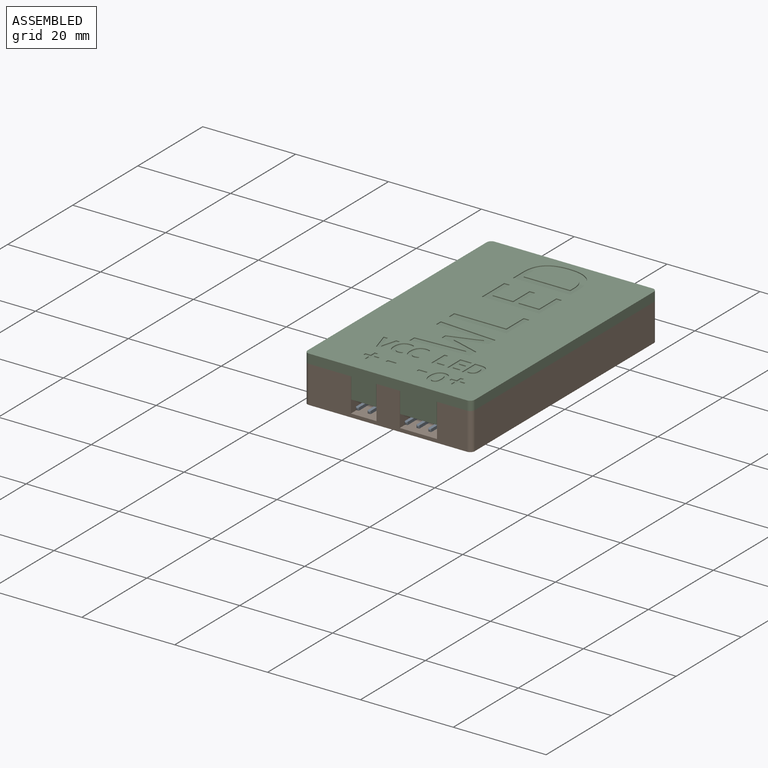
[diagram: assembled view]
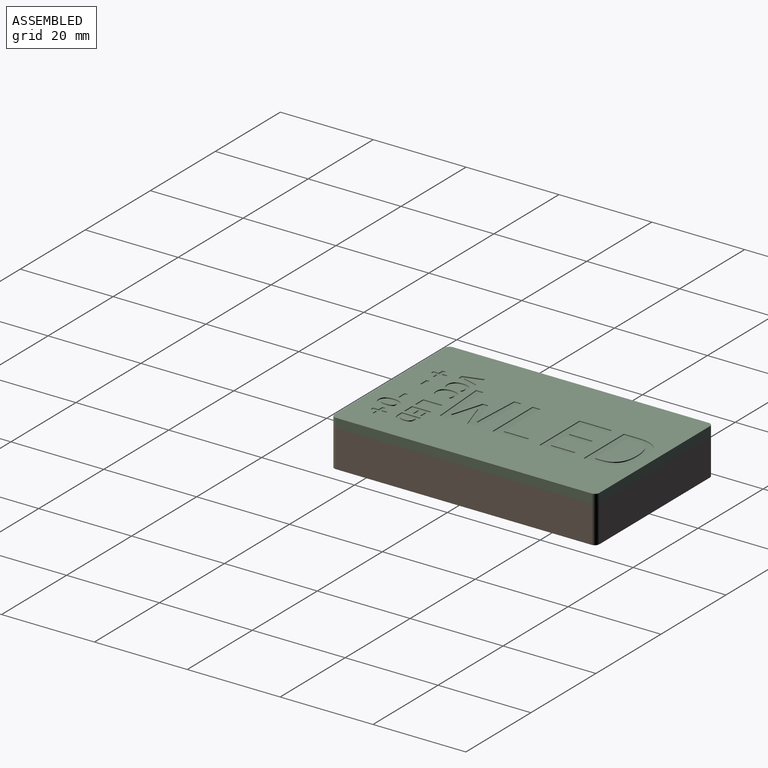
[diagram: assembled view, second angle]
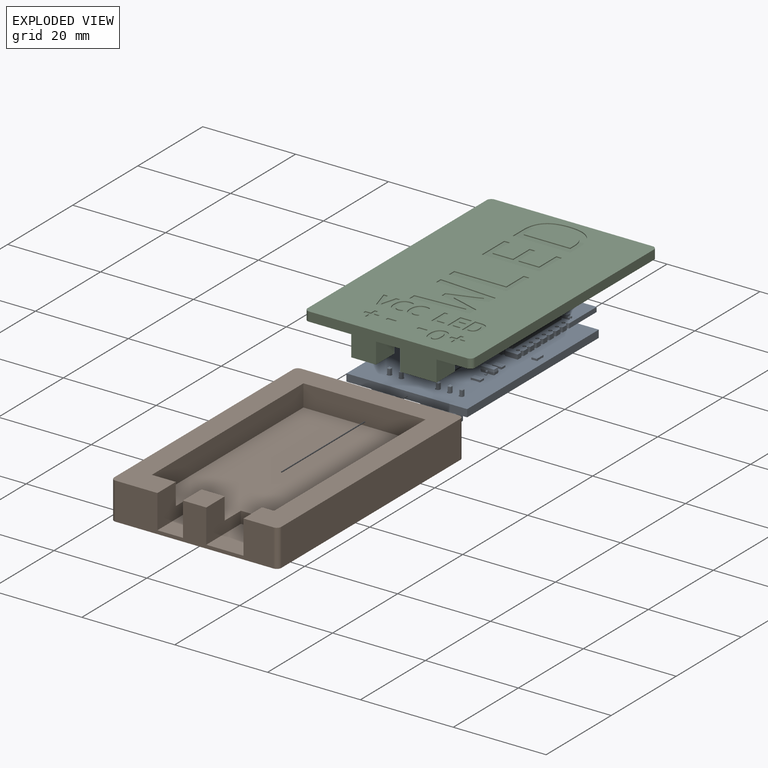
[diagram: exploded view]
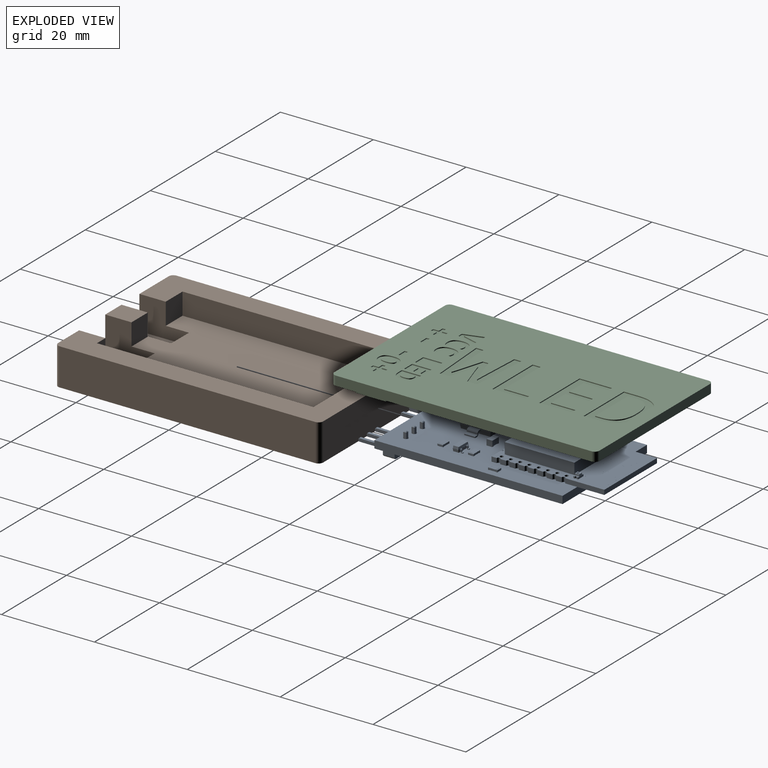
[diagram: exploded view, second angle]
FCSTD DOCUMENT  (FreeCAD 0.19R24276 (Git))
Label: wled_0.0
License: All rights reserved
LicenseURL: http://en.wikipedia.org/wiki/All_rights_reserved
objects: Part::Part2DObjectPython×16, Part::Feature×12, PartDesign::Pocket×11, Part::Extrusion×8, Sketcher::SketchObject×7, App::Part×6, App::Link×6, PartDesign::Pad×5, PartDesign::SubShapeBinder×2, PartDesign::Body×2, PartDesign::CoordinateSystem×1, PartDesign::Fillet×1, Part::Offset2D×1, Part::MultiFuse×1
note: 84 computed .brp shape members not serialized (recipe doc carries the construction recipe); baked Part::Feature solids carry a one-line shape summary decoded from their .brp

FEATURE [PartDesign::CoordinateSystem] Local_CS_6d6c
  AttacherType = Attacher::AttachEngine3D
  MapMode = 2
  Support = -> [X_Axis001]
FEATURE [Part::Feature] Pcb_6d6c
  shape: bbox 26 x 40.5 x 1.6 mm, 13 faces (baked)
FEATURE [Sketcher::SketchObject] PCB_Sketch_6d6c
  FullyConstrained = false
  sketch-geometry (6):
    g0: LineSegment StartX=46 StartY=-72.5 StartZ=0 EndX=46 EndY=-68 EndZ=0
    g1: LineSegment StartX=20 StartY=-72.5 StartZ=0 EndX=46 EndY=-72.5 EndZ=0
    g2: LineSegment StartX=20 StartY=-68 StartZ=0 EndX=20 EndY=-72.5 EndZ=0
    g3: LineSegment StartX=20 StartY=-32 StartZ=0 EndX=46 EndY=-32 EndZ=0
    g4: LineSegment StartX=46 StartY=-32 StartZ=0 EndX=46 EndY=-68 EndZ=0
    g5: LineSegment StartX=20 StartY=-68 StartZ=0 EndX=20 EndY=-32 EndZ=0
  constraints (6):
    c: Coincident(g1,g2)
    c: Coincident(g2,g5)
    c: Coincident(g3,g5)
    c: Coincident(g0,g1)
    c: Coincident(g0,g4)
    c: Coincident(g3,g4)
FEATURE [Part::Feature] pads_area013001  label="topPads_6d6c"
  Placement = pos=(0,0,0.02) rot=(0,0,1;0rad)
  shape: bbox 23.18 x 34.92 x 2e-07 mm, 50 faces, 0 solids (baked)
FEATURE [Part::Feature] Shape006001  label="topTracks_6d6c"
  Placement = pos=(0,0,0.01) rot=(0,0,1;0rad)
  shape: bbox 25.15 x 37.12 x 2e-07 mm, 12 faces, 0 solids (baked)
FEATURE [Part::Feature] zones_area001  label="topZones_6d6c"
  Placement = pos=(0,0,0.01) rot=(0,0,1;0rad)
  shape: bbox 24.73 x 39.23 x 2e-07 mm, 22 faces, 0 solids (baked)
FEATURE [Part::Feature] pads_area013004001  label="botPads_6d6c"
  Placement = pos=(0,0,-1.62) rot=(0,0,1;0rad)
  shape: bbox 17.2 x 1.7 x 2e-07 mm, 5 faces, 0 solids (baked)
FEATURE [App::Part] Board_Geoms_6d6c
  Group = -> [Pcb_6d6c,PCB_Sketch_6d6c,pads_area013001,Shape006001,zones_area001,pads_area013004001]
  Origin = -> Origin002
FEATURE [Part::Feature] Part__Feature  label="STEP_Wi-Fi_ESP-12-E_v1"
  shape: bbox 16.2 x 24.3 x 3.402 mm, 3507 faces (baked)
FEATURE [App::Part] ASSEMBLY  label="U2_ASSEMBLY_63B548B7"
  Group = -> [Part__Feature]
  Origin = -> Origin008
  Placement = pos=(26.375,-34.975,0) rot=(0,0,1;0rad)
FEATURE [Part::Feature] Shape002  label="C1_C_0805_2012Metric_63B547BA"
  Placement = pos=(28.75,-53.9,0) rot=(0,0,1;3.14159rad)
  shape: bbox 2 x 1.25 x 1.25 mm, 28 faces (baked)
FEATURE [App::Link] C1_C_0805_2012Metric_63B547BA_ln_  label="C2_C_0805_2012Metric_63B547CB"
  LinkPlacement = pos=(35.433,-54.4322,0) rot=(0,0,1;3.14159rad)
  LinkedObject = -> Shape002
  Placement = pos=(35.433,-54.4322,0) rot=(0,0,1;3.14159rad)
FEATURE [App::Link] C1_C_0805_2012Metric_63B547BA_ln_001  label="C3_C_0805_2012Metric_63B547DC"
  LinkPlacement = pos=(22.25,-49.95,0) rot=(0,0,-1;1.5708rad)
  LinkedObject = -> Shape002
  Placement = pos=(22.25,-49.95,0) rot=(0,0,-1;1.5708rad)
FEATURE [Part::Feature] Shape003  label="Q1_SOT_23_63B5481E"
  Placement = pos=(40.5,-57.8,0) rot=(0,0,-1;1.5708rad)
  shape: bbox 3 x 2.5 x 1.2 mm, 76 faces (baked)
FEATURE [Part::Feature] Shape004  label="R1_R_0805_2012Metric_63B5482F"
  Placement = pos=(22.9,-39.9875,0) rot=(0,0,1;1.5708rad)
  shape: bbox 1.2 x 2 x 0.45 mm, 26 faces (baked)
FEATURE [App::Link] R1_R_0805_2012Metric_63B5482F_ln_  label="R2_R_0805_2012Metric_63B54840"
  LinkPlacement = pos=(22.9,-35.9875,0) rot=(0,0,1;1.5708rad)
  LinkedObject = -> Shape004
  Placement = pos=(22.9,-35.9875,0) rot=(0,0,1;1.5708rad)
FEATURE [App::Link] R1_R_0805_2012Metric_63B5482F_ln_001  label="R3_R_0805_2012Metric_63B57215"
  LinkPlacement = pos=(44,-48.0125,0) rot=(0,0,-1;1.5708rad)
  LinkedObject = -> Shape004
  Placement = pos=(44,-48.0125,0) rot=(0,0,-1;1.5708rad)
FEATURE [App::Link] R1_R_0805_2012Metric_63B5482F_ln_002  label="R4_R_0805_2012Metric_63B54862"
  LinkPlacement = pos=(40.5,-54.9,0) rot=(0,0,1;3.14159rad)
  LinkedObject = -> Shape004
  Placement = pos=(40.5,-54.9,0) rot=(0,0,1;3.14159rad)
FEATURE [App::Link] R1_R_0805_2012Metric_63B5482F_ln_003  label="R5_R_0805_2012Metric_63B54873"
  LinkPlacement = pos=(40.5,-61.5,0) rot=(0,0,1;3.14159rad)
  LinkedObject = -> Shape004
  Placement = pos=(40.5,-61.5,0) rot=(0,0,1;3.14159rad)
FEATURE [Part::Feature] Shape005  label="U1_SOT_223_63B54889"
  Placement = pos=(31.65,-59.6,0) rot=(0,0,1;0rad)
  shape: bbox 7 x 6.5 x 1.7 mm, 78 faces (baked)
FEATURE [App::Part] Top_6d6c
  Group = -> [ASSEMBLY,Shape002,C1_C_0805_2012Metric_63B547BA_ln_,C1_C_0805_2012Metric_63B547BA_ln_001,Shape003,Shape004,R1_R_0805_2012Metric_63B5482F_ln_,R1_R_0805_2012Metric_63B5482F_ln_001,R1_R_0805_2012Metric_63B5482F_ln_002,R1_R_0805_2012Metric_63B5482F_ln_003,Shape005]
  Origin = -> Origin004
FEATURE [Part::Feature] Shape  label="J2_PinHeader_1x03_P254mm_Horizontal_63BF14FD"
  Placement = pos=(37,-68.5,-1.6) rot=(0.707107,-0.707107,0;3.14159rad)
  shape: bbox 7.62 x 10.36 x 5.54 mm, 85 faces (baked)
FEATURE [Part::Feature] Shape001  label="J1_PinHeader_1x02_P254mm_Horizontal_63BF14CB"
  Placement = pos=(26.5,-68.5,-1.6) rot=(0.707107,-0.707107,0;3.14159rad)
  shape: bbox 5.08 x 10.36 x 5.54 mm, 58 faces (baked)
FEATURE [App::Part] Bot_6d6c
  Group = -> [Shape,Shape001]
  Origin = -> Origin009
FEATURE [App::Part] Step_Models_6d6c
  Group = -> [Top_6d6c,Bot_6d6c]
  Origin = -> Origin003
FEATURE [App::Part] Board_6d6c  label="wled_0.0"
  Group = -> [Local_CS_6d6c,Board_Geoms_6d6c,Step_Models_6d6c]
  Origin = -> Origin001
  Placement = pos=(-32.7425,52.0814,5) rot=(0,0,1;0rad)
FEATURE [Sketcher::SketchObject] Sketch
  FullyConstrained = false
  MapMode = 5
  Support = -> [XY_Plane]
  sketch-geometry (7):
    g0: LineSegment StartX=-17.73 StartY=30.85 StartZ=0 EndX=18.28 EndY=30.85 EndZ=0
    g1: LineSegment StartX=18.28 StartY=30.85 StartZ=0 EndX=18.28 EndY=-26.2254 EndZ=0
    g2: LineSegment StartX=18.28 StartY=-26.2254 StartZ=0 EndX=-17.73 EndY=-26.2254 EndZ=0
    g3: LineSegment StartX=-17.73 StartY=-26.2254 StartZ=0 EndX=-17.73 EndY=30.85 EndZ=0
    g4: GeomPoint X=-12.73 Y=-20.4 Z=0
    g5: GeomPoint X=13.28 Y=-20.4 Z=0
    g6: GeomPoint X=0 Y=25.85 Z=0
  constraints (17):
    c: Coincident(g0,g1)
    c: Coincident(g1,g2)
    c: Coincident(g2,g3)
    c: Coincident(g3,g0)
    c: Horizontal(g0)
    c: Horizontal(g2)
    c: Vertical(g1)
    c: Vertical(g3)
    c: DistanceX(g-2,g5) = 13.28
    c: DistanceY(g-1,g5) = -20.4
    c: DistanceX(g-2,g4) = -12.73
    c: DistanceY(g-1,g4) = -20.4
    c: PointOnObject(g6,g-2)
    c: DistanceY(g-1,g6) = 25.85
    c: Distance(g4,g3) = 5
    c: Distance(g5,g1) = 5
    c: Distance(g6,g0) = 5
FEATURE [PartDesign::Pad] Pad
  Direction = (1,1,1)
  Length = 8
  Length2 = 100
  Profile = -> Sketch
  Type = 0
FEATURE [Sketcher::SketchObject] Sketch001
  FullyConstrained = false
  MapMode = 5
  Placement = pos=(0,0,8) rot=(0,0,1;0rad)
  Support = -> [Pad]
  sketch-geometry (4):
    g0: LineSegment StartX=-12.8861 StartY=26.0581 StartZ=0 EndX=13.425 EndY=26.0581 EndZ=0
    g1: LineSegment StartX=13.425 StartY=26.0581 StartZ=0 EndX=13.425 EndY=-20.5605 EndZ=0
    g2: LineSegment StartX=13.425 StartY=-20.5605 StartZ=0 EndX=-12.8861 EndY=-20.5605 EndZ=0
    g3: LineSegment StartX=-12.8861 StartY=-20.5605 StartZ=0 EndX=-12.8861 EndY=26.0581 EndZ=0
  constraints (8):
    c: Coincident(g0,g1)
    c: Coincident(g1,g2)
    c: Coincident(g2,g3)
    c: Coincident(g3,g0)
    c: Horizontal(g0)
    c: Horizontal(g2)
    c: Vertical(g1)
    c: Vertical(g3)
FEATURE [PartDesign::Pocket] Pocket
  BaseFeature = -> Pad
  Length = 4.7
  Length2 = 100
  Profile = -> Sketch001
  Type = 0
FEATURE [PartDesign::Fillet] Fillet
  Base = -> Pocket [Edge8,Edge5,Edge2,Edge1]
  BaseFeature = -> Pocket
  Radius = 1
  SupportTransform = false
FEATURE [PartDesign::SubShapeBinder] Binder
  BindMode = 0
  ClaimChildren = false
  Context = -> Body001 [Binder.]
  Fuse = false
  MakeFace = true
  PartialLoad = false
  Relative = true
  Support = -> [Body[Fillet.Edge16,Fillet.Vertex13,Fillet.Edge18,Fillet.Edge20,Fillet.Edge19,Fillet.Edge17,Fillet.Edge15,Fillet.Edge4]]
  _Version = 2
FEATURE [PartDesign::Pad] Pad001
  Direction = (1,1,1)
  Length = 2
  Length2 = 100
  Profile = -> Binder
  Type = 0
FEATURE [PartDesign::SubShapeBinder] Binder001
  BindMode = 0
  ClaimChildren = false
  Context = -> Body001 [Binder001.]
  Fuse = false
  MakeFace = true
  PartialLoad = false
  Relative = true
  Support = -> [Body[Fillet.Edge24,Fillet.Edge21,Fillet.Edge22,Fillet.Edge23]]
  _Version = 2
FEATURE [Part::Offset2D] Offset2D
  Fill = false
  Intersection = false
  Join = 0
  Mode = 1
  SelfIntersection = false
  Source = -> Binder001
  Value = -0.1
FEATURE [PartDesign::Pad] Pad002
  BaseFeature = -> Pad001
  Direction = (1,1,1)
  Length = 1.95
  Length2 = 100
  Profile = -> Binder001
  Reversed = true
  Type = 0
FEATURE [Sketcher::SketchObject] Sketch002
  FullyConstrained = false
  MapMode = 5
  Placement = pos=(0,0,6.05) rot=(1,0,0;3.14159rad)
  Support = -> [Pad002]
  sketch-geometry (4):
    g0: LineSegment StartX=-7.1829 StartY=17.3485 StartZ=0 EndX=10.2056 EndY=17.3485 EndZ=0
    g1: LineSegment StartX=10.2056 StartY=17.3485 StartZ=0 EndX=10.2056 EndY=-19.8365 EndZ=0
    g2: LineSegment StartX=10.2056 StartY=-19.8365 StartZ=0 EndX=-7.1829 EndY=-19.8365 EndZ=0
    g3: LineSegment StartX=-7.1829 StartY=-19.8365 StartZ=0 EndX=-7.1829 EndY=17.3485 EndZ=0
  constraints (8):
    c: Coincident(g0,g1)
    c: Coincident(g1,g2)
    c: Coincident(g2,g3)
    c: Coincident(g3,g0)
    c: Horizontal(g0)
    c: Horizontal(g2)
    c: Vertical(g1)
    c: Vertical(g3)
FEATURE [PartDesign::Pocket] Pocket001
  BaseFeature = -> Pad002
  Length = 2.5
  Length2 = 100
  Profile = -> Sketch002
  Type = 0
FEATURE [Sketcher::SketchObject] Sketch003
  ExternalGeometry = -> [Pocket]
  FullyConstrained = false
  MapMode = 5
  Placement = pos=(0,0,8) rot=(0,0,1;0rad)
  Support = -> [Pocket]
  sketch-geometry (8):
    g0: LineSegment StartX=-7.72183 StartY=-15.5602 StartZ=0 EndX=-2.21025 EndY=-15.5602 EndZ=0
    g1: LineSegment StartX=-2.21025 StartY=-15.5602 StartZ=0 EndX=-2.21025 EndY=-26.2254 EndZ=0
    g2: LineSegment StartX=-2.21025 StartY=-26.2254 StartZ=0 EndX=-7.72183 EndY=-26.2254 EndZ=0
    g3: LineSegment StartX=-7.72183 StartY=-26.2254 StartZ=0 EndX=-7.72183 EndY=-15.5602 EndZ=0
    g4: LineSegment StartX=2.80286 StartY=-15.5602 StartZ=0 EndX=10.8274 EndY=-15.5602 EndZ=0
    g5: LineSegment StartX=10.8274 StartY=-15.5602 StartZ=0 EndX=10.8274 EndY=-26.2254 EndZ=0
    g6: LineSegment StartX=10.8274 StartY=-26.2254 StartZ=0 EndX=2.80286 EndY=-26.2254 EndZ=0
    g7: LineSegment StartX=2.80286 StartY=-26.2254 StartZ=0 EndX=2.80286 EndY=-15.5602 EndZ=0
  constraints (19):
    c: Coincident(g0,g1)
    c: Coincident(g1,g2)
    c: Coincident(g2,g3)
    c: Coincident(g3,g0)
    c: Horizontal(g0)
    c: Horizontal(g2)
    c: Vertical(g1)
    c: Vertical(g3)
    c: PointOnObject(g1,g-3)
    c: Coincident(g4,g5)
    c: Coincident(g5,g6)
    c: Coincident(g6,g7)
    c: Coincident(g7,g4)
    c: Horizontal(g4)
    c: Horizontal(g6)
    c: Vertical(g5)
    c: Vertical(g7)
    c: PointOnObject(g5,g-3)
    c: Equal(g1,g7)
FEATURE [PartDesign::Pocket] Pocket002
  BaseFeature = -> Fillet
  Length = 7.25
  Length2 = 100
  Profile = -> Sketch003
  Type = 0
FEATURE [PartDesign::Body] Body  label="Dnishe"
  Group = -> [Sketch,Pad,Sketch001,Pocket,Fillet,Sketch003,Pocket002]
  Origin = -> Origin
  Tip = -> Pocket002
FEATURE [Sketcher::SketchObject] Sketch004
  ExternalGeometry = -> [Pocket001]
  FullyConstrained = false
  MapMode = 5
  Placement = pos=(0,0,8) rot=(1,0,0;3.14159rad)
  Support = -> [Pocket001]
  sketch-geometry (8):
    g0: LineSegment StartX=-7.62247 StartY=26.2254 StartZ=0 EndX=-7.62247 EndY=20.5605 EndZ=0
    g1: LineSegment StartX=-7.62247 StartY=26.2254 StartZ=0 EndX=-2.31609 EndY=26.2254 EndZ=0
    g2: LineSegment StartX=-2.31609 StartY=26.2254 StartZ=0 EndX=-2.31609 EndY=20.5605 EndZ=0
    g3: LineSegment StartX=-2.31609 StartY=20.5605 StartZ=0 EndX=-7.62247 EndY=20.5605 EndZ=0
    g4: LineSegment StartX=2.90391 StartY=26.2254 StartZ=0 EndX=2.90391 EndY=20.5605 EndZ=0
    g5: LineSegment StartX=2.90391 StartY=20.5605 StartZ=0 EndX=10.7289 EndY=20.5605 EndZ=0
    g6: LineSegment StartX=10.7289 StartY=20.5605 StartZ=0 EndX=10.7289 EndY=26.2254 EndZ=0
    g7: LineSegment StartX=10.7289 StartY=26.2254 StartZ=0 EndX=2.90391 EndY=26.2254 EndZ=0
  constraints (20):
    c: PointOnObject(g0,g-4)
    c: PointOnObject(g0,g-3)
    c: Vertical(g0)
    c: Coincident(g1,g0)
    c: PointOnObject(g1,g-4)
    c: Coincident(g2,g1)
    c: PointOnObject(g2,g-3)
    c: Vertical(g2)
    c: Coincident(g3,g2)
    c: Coincident(g3,g0)
    c: PointOnObject(g4,g-4)
    c: PointOnObject(g4,g-3)
    c: Vertical(g4)
    c: Coincident(g5,g4)
    c: PointOnObject(g5,g-3)
    c: Coincident(g6,g5)
    c: PointOnObject(g6,g-4)
    c: Vertical(g6)
    c: Coincident(g7,g6)
    c: Coincident(g7,g4)
FEATURE [PartDesign::Pad] Pad003
  BaseFeature = -> Pocket001
  Direction = (1,1,1)
  Length = 4.5
  Length2 = 100
  Profile = -> Sketch004
  Type = 0
FEATURE [Part::Part2DObjectPython] ShapeString  # Draft 2D object (typed FeaturePython)
  FontFile = <path>
  Placement = pos=(2.5,-17,10) rot=(0,0,1;0rad)
  Size = 5
  String = LED
  Tracking = 0
FEATURE [Part::Part2DObjectPython] ShapeString001  # Draft 2D object (typed FeaturePython)
  FontFile = <path>
  Placement = pos=(-10,-17,10) rot=(0,0,1;0rad)
  Size = 5
  String = VCC
  Tracking = 0
FEATURE [Part::Part2DObjectPython] ShapeString002  # Draft 2D object (typed FeaturePython)
  FontFile = <path>
  Placement = pos=(-8.9,-22.4,10) rot=(0,0,1;0rad)
  Size = 5
  String = +
  Tracking = 0
FEATURE [Part::Part2DObjectPython] ShapeString003  # Draft 2D object (typed FeaturePython)
  FontFile = <path>
  Placement = pos=(-4.58,-22.47,10) rot=(0,0,1;0rad)
  Size = 5
  String = -
  Tracking = 0
FEATURE [Part::Part2DObjectPython] ShapeString004  # Draft 2D object (typed FeaturePython)
  FontFile = <path>
  Placement = pos=(9.61,-22.4,10) rot=(0,0,1;0rad)
  Size = 5
  String = +
  Tracking = 0
FEATURE [Part::Part2DObjectPython] ShapeString005  # Draft 2D object (typed FeaturePython)
  FontFile = <path>
  Placement = pos=(5.8,-23.4,10) rot=(0,0,1;0rad)
  Size = 5
  String = O
  Tracking = 0
FEATURE [Part::Part2DObjectPython] ShapeString006  # Draft 2D object (typed FeaturePython)
  FontFile = <path>
  Placement = pos=(2.1,-22.49,10) rot=(0,0,1;0rad)
  Size = 5
  String = -
  Tracking = 0
FEATURE [Part::Part2DObjectPython] ShapeString007  # Draft 2D object (typed FeaturePython)
  FontFile = <path>
  Placement = pos=(7,-12,10) rot=(0,0,1;1.5708rad)
  Size = 15
  String = WLED
  Tracking = 0
FEATURE [PartDesign::Pocket] Pocket003
  BaseFeature = -> Pad003
  Length = 0.2
  Length2 = 100
  Profile = -> ShapeString001
  Type = 0
FEATURE [PartDesign::Pocket] Pocket004
  BaseFeature = -> Pocket003
  Length = 0.2
  Length2 = 100
  Profile = -> ShapeString
  Type = 0
FEATURE [PartDesign::Pocket] Pocket005
  BaseFeature = -> Pocket004
  Length = 0.2
  Length2 = 100
  Profile = -> ShapeString002
  Type = 0
FEATURE [PartDesign::Pocket] Pocket006
  BaseFeature = -> Pocket005
  Length = 0.2
  Length2 = 100
  Profile = -> ShapeString003
  Type = 0
FEATURE [PartDesign::Pocket] Pocket007
  BaseFeature = -> Pocket006
  Length = 0.2
  Length2 = 100
  Profile = -> ShapeString004
  Type = 0
FEATURE [PartDesign::Pocket] Pocket008
  BaseFeature = -> Pocket007
  Length = 0.2
  Length2 = 100
  Profile = -> ShapeString005
  Type = 0
FEATURE [PartDesign::Pocket] Pocket009
  BaseFeature = -> Pocket008
  Length = 0.2
  Length2 = 100
  Profile = -> ShapeString006
  Type = 0
FEATURE [PartDesign::Pocket] Pocket010
  BaseFeature = -> Pocket009
  Length = 0.2
  Length2 = 100
  Profile = -> ShapeString007
  Type = 0
FEATURE [Sketcher::SketchObject] Sketch005
  ExternalGeometry = -> [Pad002]
  FullyConstrained = false
  MapMode = 5
  Placement = pos=(0,0,6.05) rot=(1,0,0;3.14159rad)
  Support = -> [Pad002]
  sketch-geometry (4):
    g0: LineSegment StartX=-12.8861 StartY=20.5605 StartZ=0 EndX=13.425 EndY=20.5605 EndZ=0
    g1: LineSegment StartX=13.425 StartY=20.5605 StartZ=0 EndX=13.425 EndY=17.91 EndZ=0
    g2: LineSegment StartX=13.425 StartY=17.91 StartZ=0 EndX=-12.8861 EndY=17.91 EndZ=0
    g3: LineSegment StartX=-12.8861 StartY=17.91 StartZ=0 EndX=-12.8861 EndY=20.5605 EndZ=0
  constraints (10):
    c: Coincident(g0,g1)
    c: Coincident(g1,g2)
    c: Coincident(g2,g3)
    c: Coincident(g3,g0)
    c: Horizontal(g0)
    c: Horizontal(g2)
    c: Vertical(g1)
    c: Vertical(g3)
    c: Coincident(g0,g-5)
    c: PointOnObject(g1,g-4)
FEATURE [PartDesign::Pad] Pad004
  BaseFeature = -> Pocket010
  Direction = (1,1,1)
  Length = 1
  Length2 = 100
  Profile = -> Sketch005
  Type = 0
FEATURE [PartDesign::Body] Body001  label="NotDnishe"
  Group = -> [Binder,Pad001,Binder001,Pad002,Sketch002,Pocket001,Sketch004,Pad003,ShapeString001,ShapeString002,ShapeString003,ShapeString004,ShapeString005,ShapeString006,ShapeString007,ShapeString,Pocket003,Pocket004,Pocket005,Pocket006,Pocket007,Pocket008,Pocket009,Pocket010,Sketch005,Pad004]
  Origin = -> Origin010
  Tip = -> Pad004
FEATURE [Part::Part2DObjectPython] ShapeString008  # Draft 2D object (typed FeaturePython)
  FontFile = <path>
  Placement = pos=(-10,-17,10) rot=(0,0,1;0rad)
  Size = 5
  String = VCC
  Tracking = 0
FEATURE [Part::Part2DObjectPython] ShapeString009  # Draft 2D object (typed FeaturePython)
  FontFile = <path>
  Placement = pos=(2.5,-17,10) rot=(0,0,1;0rad)
  Size = 5
  String = LED
  Tracking = 0
FEATURE [Part::Part2DObjectPython] ShapeString010  # Draft 2D object (typed FeaturePython)
  FontFile = <path>
  Placement = pos=(-8.9,-22.4,10) rot=(0,0,1;0rad)
  Size = 5
  String = +
  Tracking = 0
FEATURE [Part::Part2DObjectPython] ShapeString011  # Draft 2D object (typed FeaturePython)
  FontFile = <path>
  Placement = pos=(-4.58,-22.47,10) rot=(0,0,1;0rad)
  Size = 5
  String = -
  Tracking = 0
FEATURE [Part::Part2DObjectPython] ShapeString012  # Draft 2D object (typed FeaturePython)
  FontFile = <path>
  Placement = pos=(9.61,-22.4,10) rot=(0,0,1;0rad)
  Size = 5
  String = +
  Tracking = 0
FEATURE [Part::Part2DObjectPython] ShapeString013  # Draft 2D object (typed FeaturePython)
  FontFile = <path>
  Placement = pos=(5.8,-23.4,10) rot=(0,0,1;0rad)
  Size = 5
  String = O
  Tracking = 0
FEATURE [Part::Part2DObjectPython] ShapeString014  # Draft 2D object (typed FeaturePython)
  FontFile = <path>
  Placement = pos=(2.1,-22.49,10) rot=(0,0,1;0rad)
  Size = 5
  String = -
  Tracking = 0
FEATURE [Part::Part2DObjectPython] ShapeString015  # Draft 2D object (typed FeaturePython)
  FontFile = <path>
  Placement = pos=(7,-12,10) rot=(0,0,1;1.5708rad)
  Size = 15
  String = WLED
  Tracking = 0
FEATURE [Part::Extrusion] Extrude
  Base = -> ShapeString008
  Dir = (0,0,1)
  DirMode = 2
  FaceMakerClass = Part::FaceMakerBullseye
  LengthFwd = 0.2
  LengthRev = 0
  Reversed = true
  Solid = true
  Symmetric = false
FEATURE [Part::Extrusion] Extrude001
  Base = -> ShapeString009
  Dir = (0,0,1)
  DirMode = 2
  FaceMakerClass = Part::FaceMakerBullseye
  LengthFwd = 0.2
  LengthRev = 0
  Reversed = true
  Solid = true
  Symmetric = false
FEATURE [Part::Extrusion] Extrude002
  Base = -> ShapeString010
  Dir = (0,0,1)
  DirMode = 2
  FaceMakerClass = Part::FaceMakerBullseye
  LengthFwd = 0.2
  LengthRev = 0
  Reversed = true
  Solid = true
  Symmetric = false
FEATURE [Part::Extrusion] Extrude003
  Base = -> ShapeString011
  Dir = (0,0,1)
  DirMode = 2
  FaceMakerClass = Part::FaceMakerBullseye
  LengthFwd = 0.2
  LengthRev = 0
  Reversed = true
  Solid = true
  Symmetric = false
FEATURE [Part::Extrusion] Extrude004
  Base = -> ShapeString012
  Dir = (0,0,1)
  DirMode = 2
  FaceMakerClass = Part::FaceMakerBullseye
  LengthFwd = 0.2
  LengthRev = 0
  Reversed = true
  Solid = true
  Symmetric = false
FEATURE [Part::Extrusion] Extrude005
  Base = -> ShapeString013
  Dir = (0,0,1)
  DirMode = 2
  FaceMakerClass = Part::FaceMakerBullseye
  LengthFwd = 0.2
  LengthRev = 0
  Reversed = true
  Solid = true
  Symmetric = false
FEATURE [Part::Extrusion] Extrude006
  Base = -> ShapeString014
  Dir = (0,0,1)
  DirMode = 2
  FaceMakerClass = Part::FaceMakerBullseye
  LengthFwd = 0.2
  LengthRev = 0
  Reversed = true
  Solid = true
  Symmetric = false
FEATURE [Part::Extrusion] Extrude007
  Base = -> ShapeString015
  Dir = (0,0,1)
  DirMode = 2
  FaceMakerClass = Part::FaceMakerBullseye
  LengthFwd = 0.2
  LengthRev = 0
  Reversed = true
  Solid = true
  Symmetric = false
FEATURE [Part::MultiFuse] Fusion  label="Captions"
  Shapes = -> [Extrude,Extrude001,Extrude002,Extrude003,Extrude004,Extrude005,Extrude006,Extrude007]
note: 16 file-system paths scrubbed to <path> (originals preserved in the JSON sidecar)
